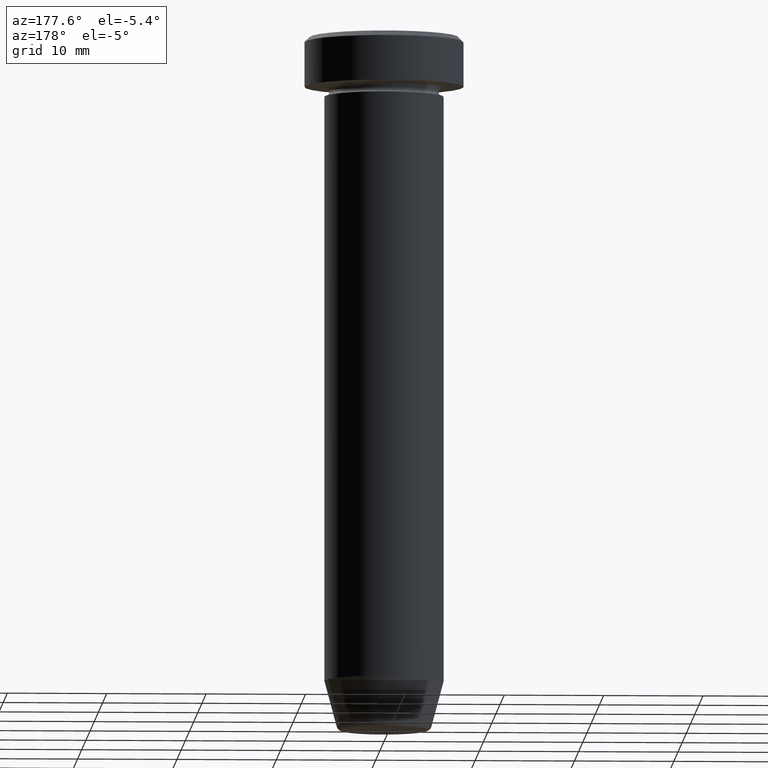
[diagram: clean part render]
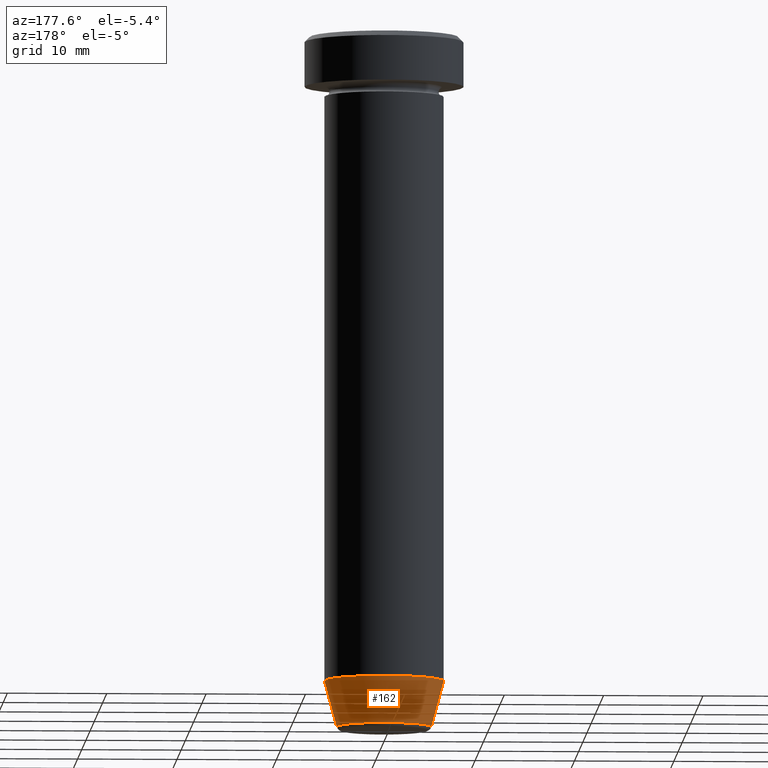
[diagram: same view with one face highlighted and labeled with its STEP entity id]
A machine part, auxiliary view. The second image highlights one B-rep face of the part: STEP entity #162.
In plain terms, the highlighted conical surface has half-angle 15 deg.
Its self-contained STEP definition (entity closure, byte-faithful):
#25 = CARTESIAN_POINT ( 'NONE',  ( 0.000000000000000000, 0.000000000000000000, -65.00000000000000000 ) ) ;
#41 = VERTEX_POINT ( 'NONE', #433 ) ;
#54 = EDGE_CURVE ( 'NONE', #93, #521, #152, .T. ) ;
#63 = DIRECTION ( 'NONE',  ( 1.000000000000000000, 0.000000000000000000, 0.000000000000000000 ) ) ;
#65 = EDGE_CURVE ( 'NONE', #257, #521, #460, .T. ) ;
#72 = DIRECTION ( 'NONE',  ( 0.2588190451025210170, 0.000000000000000000, 0.9659258262890680902 ) ) ;
#93 = VERTEX_POINT ( 'NONE', #207 ) ;
#100 = AXIS2_PLACEMENT_3D ( 'NONE', #491, #115, #116 ) ;
#107 = DIRECTION ( 'NONE',  ( -0.000000000000000000, -0.000000000000000000, 1.000000000000000000 ) ) ;
#114 = DIRECTION ( 'NONE',  ( 1.000000000000000000, 0.000000000000000000, 0.000000000000000000 ) ) ;
#115 = DIRECTION ( 'NONE',  ( -0.000000000000000000, -0.000000000000000000, 1.000000000000000000 ) ) ;
#116 = DIRECTION ( 'NONE',  ( -1.000000000000000000, 0.000000000000000000, 0.000000000000000000 ) ) ;
#152 = LINE ( 'NONE', #544, #160 ) ;
#154 = EDGE_CURVE ( 'NONE', #41, #93, #445, .T. ) ;
#160 = VECTOR ( 'NONE', #534, 1000.000000000000114 ) ;
#162 = ADVANCED_FACE ( 'NONE', ( #582 ), #561, .T. ) ;
#168 = EDGE_CURVE ( 'NONE', #41, #257, #248, .T. ) ;
#207 = CARTESIAN_POINT ( 'NONE',  ( -4.759553456999439547, 6.588326350684602264E-16, -69.62940952255127058 ) ) ;
#218 = ORIENTED_EDGE ( 'NONE', *, *, #65, .F. ) ;
#248 = LINE ( 'NONE', #299, #430 ) ;
#257 = VERTEX_POINT ( 'NONE', #509 ) ;
#269 = ORIENTED_EDGE ( 'NONE', *, *, #168, .F. ) ;
#299 = CARTESIAN_POINT ( 'NONE',  ( 4.660254037844383745, 0.000000000000000000, -70.00000000000000000 ) ) ;
#326 = AXIS2_PLACEMENT_3D ( 'NONE', #25, #107, #114 ) ;
#361 = AXIS2_PLACEMENT_3D ( 'NONE', #587, #488, #63 ) ;
#373 = ORIENTED_EDGE ( 'NONE', *, *, #154, .T. ) ;
#389 = CARTESIAN_POINT ( 'NONE',  ( -6.000000000000000000, 7.347880794884119736E-16, -65.00000000000000000 ) ) ;
#408 = ORIENTED_EDGE ( 'NONE', *, *, #54, .T. ) ;
#430 = VECTOR ( 'NONE', #72, 1000.000000000000114 ) ;
#433 = CARTESIAN_POINT ( 'NONE',  ( 4.759553456999439547, 0.000000000000000000, -69.62940952255127058 ) ) ;
#445 = CIRCLE ( 'NONE', #100, 4.759553456999439547 ) ;
#454 = EDGE_LOOP ( 'NONE', ( #373, #408, #218, #269 ) ) ;
#460 = CIRCLE ( 'NONE', #326, 6.000000000000000000 ) ;
#488 = DIRECTION ( 'NONE',  ( -0.000000000000000000, -0.000000000000000000, 1.000000000000000000 ) ) ;
#491 = CARTESIAN_POINT ( 'NONE',  ( 0.000000000000000000, 0.000000000000000000, -69.62940952255127058 ) ) ;
#509 = CARTESIAN_POINT ( 'NONE',  ( 6.000000000000000000, 0.000000000000000000, -65.00000000000000000 ) ) ;
#521 = VERTEX_POINT ( 'NONE', #389 ) ;
#534 = DIRECTION ( 'NONE',  ( -0.2588190451025210170, 3.169619151431768639E-17, 0.9659258262890680902 ) ) ;
#544 = CARTESIAN_POINT ( 'NONE',  ( -4.660254037844383745, 5.707165190659652868E-16, -70.00000000000000000 ) ) ;
#561 = CONICAL_SURFACE ( 'NONE', #361, 4.660254037844383745, 0.2617993877991497409 ) ;
#582 = FACE_OUTER_BOUND ( 'NONE', #454, .T. ) ;
#587 = CARTESIAN_POINT ( 'NONE',  ( 0.000000000000000000, 0.000000000000000000, -70.00000000000000000 ) ) ;